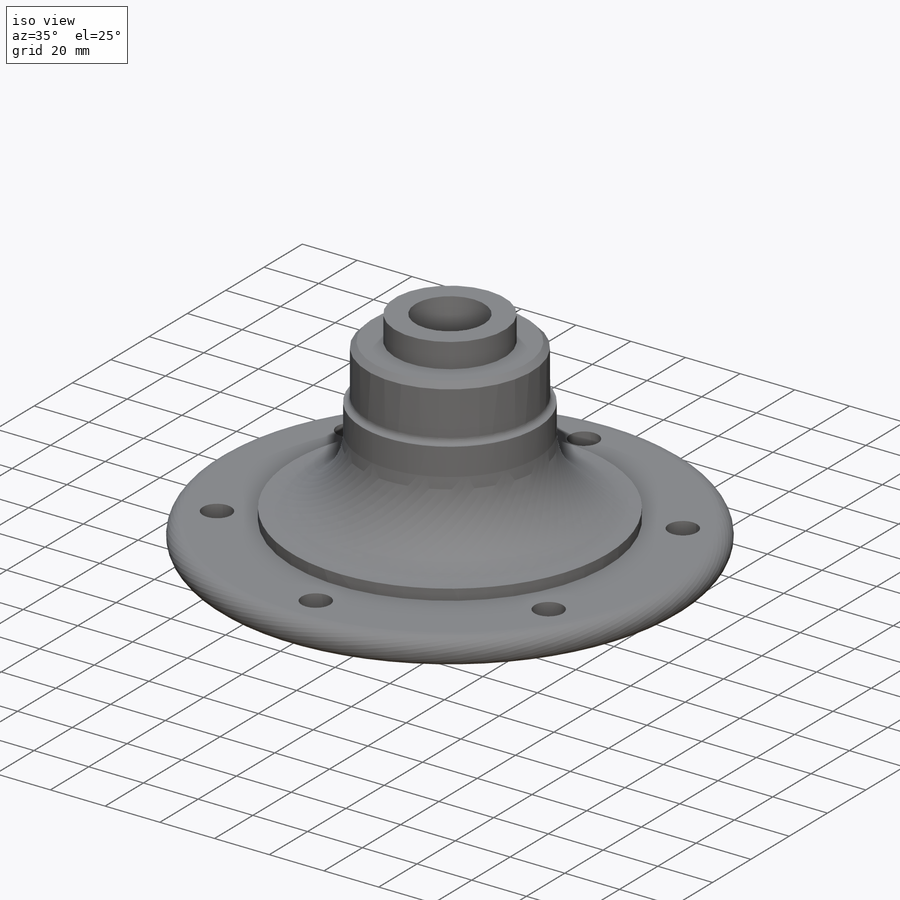
[diagram: iso view]
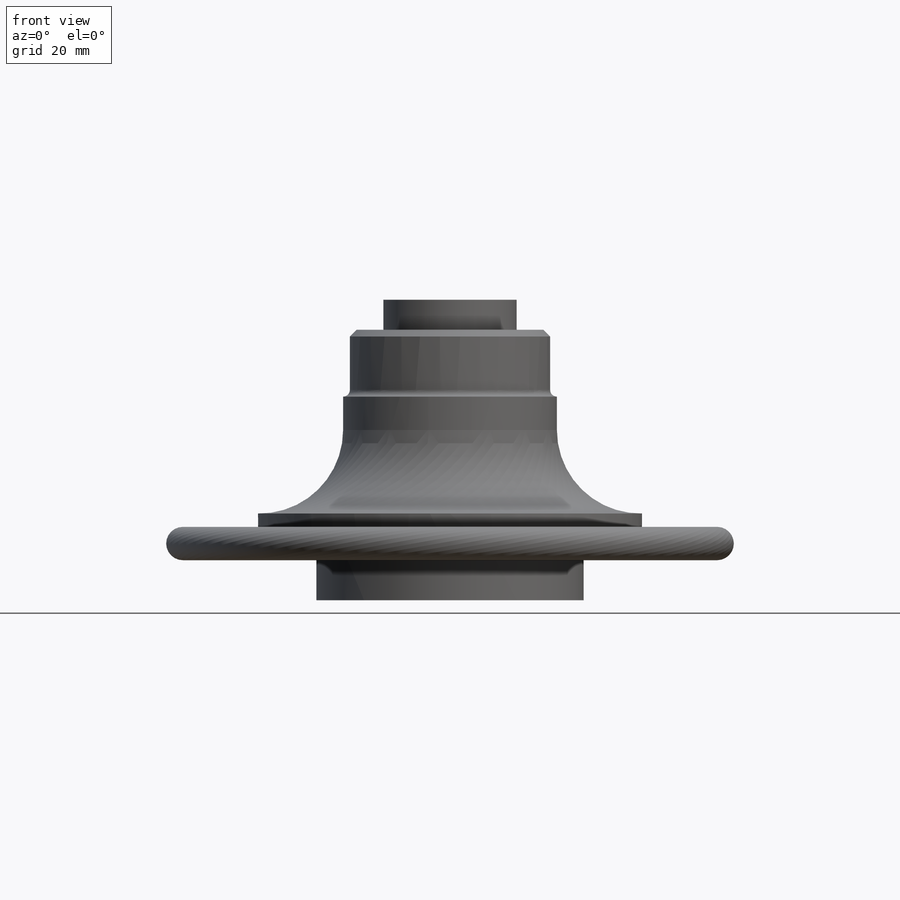
[diagram: front view]
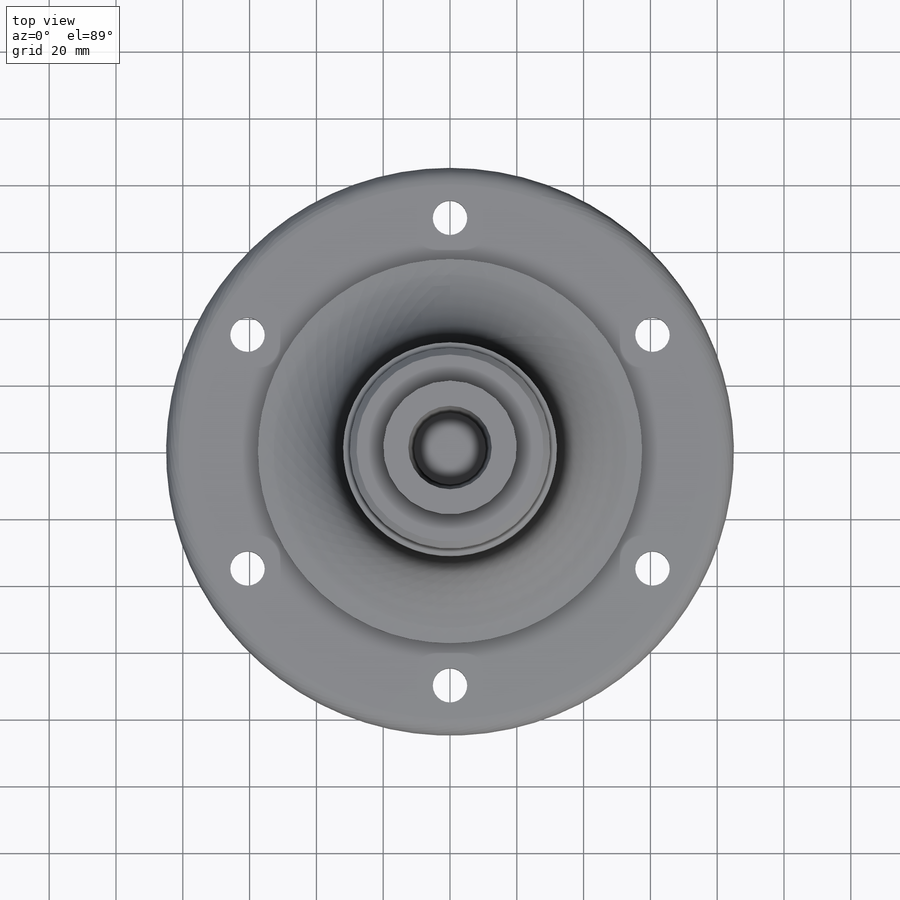
[diagram: top view]
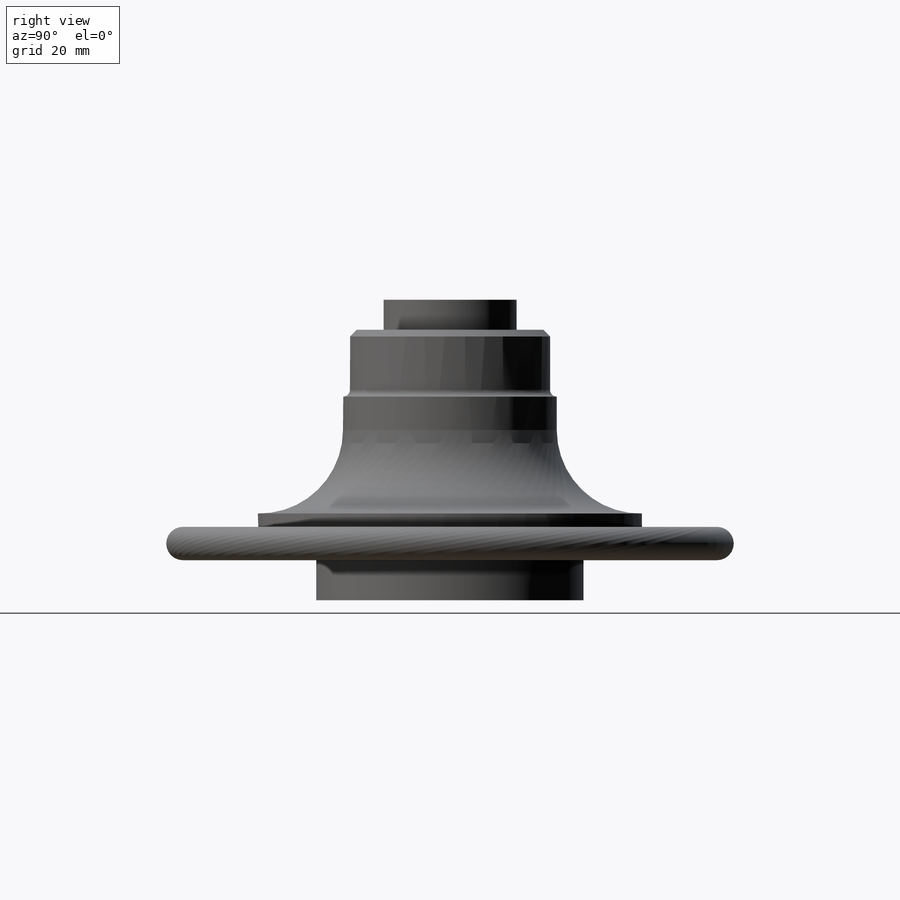
[diagram: right view]
SOLIDWORKS PART (.sldprt)
format: sldprt  version: not decoded by parser v0  size: 295,424 bytes
history: native  units: mm
features: sketch x3, cut_extrude x2, material x1, revolve x1, pattern_circular x1 (+16 scaffold rows collapsed)
feature tree (24):
  scaffold x16  (default folders/planes/origin — collapsed)
  material  "Material <sin especificar>"
  sketch  "Croquis1"  dims[c1.D5=31.75mm c1.D4=5.0mm c1.D11=25.0mm c1.D14=25.0mm c1.D2=2.0mm c2.D5=2.0mm c2.D1=80.0mm c2.D2=32.0mm c2.D3=20.0mm c2.D4=47.5mm c3.D5=9.0mm c3.D6=20.0mm c3.D7=90.0mm c3.D1=40.0mm c3.D4=~89.208447mm c3.D8=80.0mm c3.D9=57.5mm c3.D2=30.0mm c3.D10=10.0mm c3.D12=4.0mm c3.D13=12.0mm c3.D14=2.5mm c4.D2=30.0mm c4.D11=32.0mm c5.D2=30.0mm c5.D15=2.0mm c5.D3=20.0mm c5.D5=30.0mm c6.D2=2.0mm c6.D5=30.0mm c7.D2=30.0mm c7.D6=8.0mm]
  revolve  "Revolución1"  Angle=360deg
  sketch  "Croquis2"  dims[D1=25.0mm]
  cut_extrude  "Cortar-Extruir1"  Depth=20mm
  sketch  "Croquis3"  dims[D1=70.0mm]
  cut_extrude  "Cortar-Extruir2"  [1 undecoded]
  pattern_circular  "MatrizC2"  Count=6 Angle=60deg
decode coverage: 6 of 7 modeling features carry decoded parameters
note: ~ marks probable driven/reference dimensions
note: 1 parameter value undecoded
note: suppression state not decoded; provenance and decode notes live in map.json
